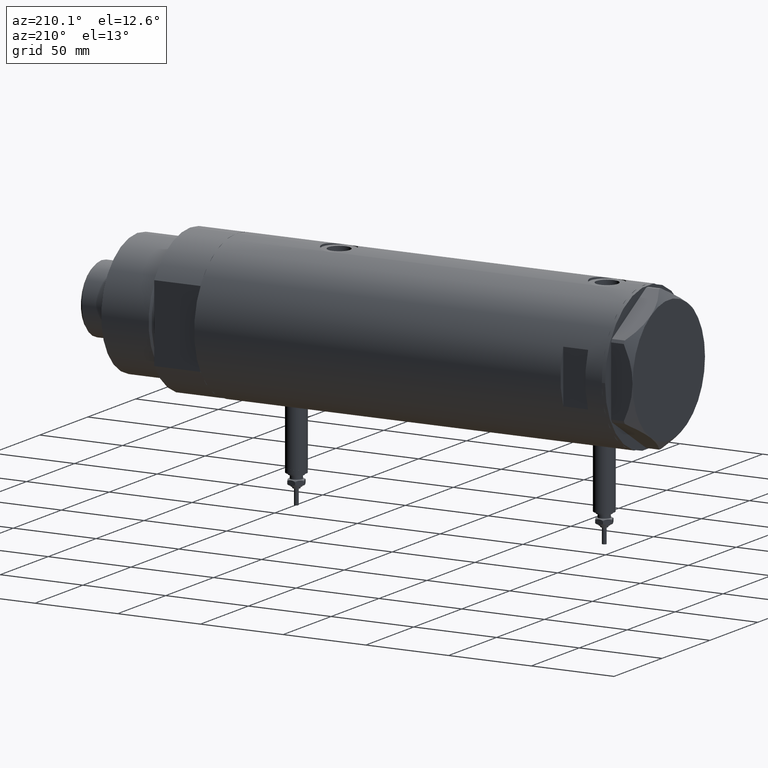
[diagram: clean part render]
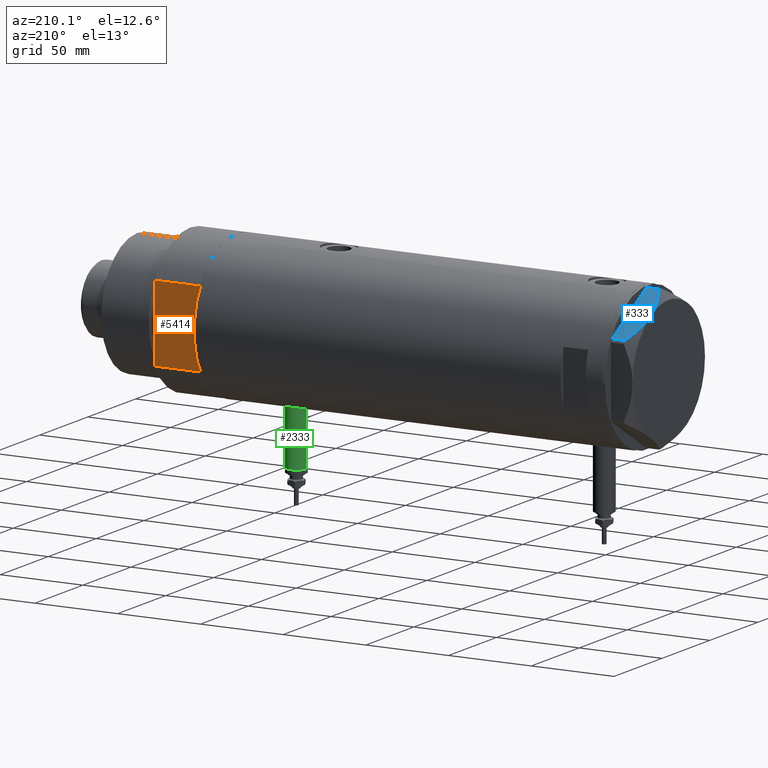
[diagram: same view with three faces highlighted in distinct colors, each labeled with its STEP entity id]
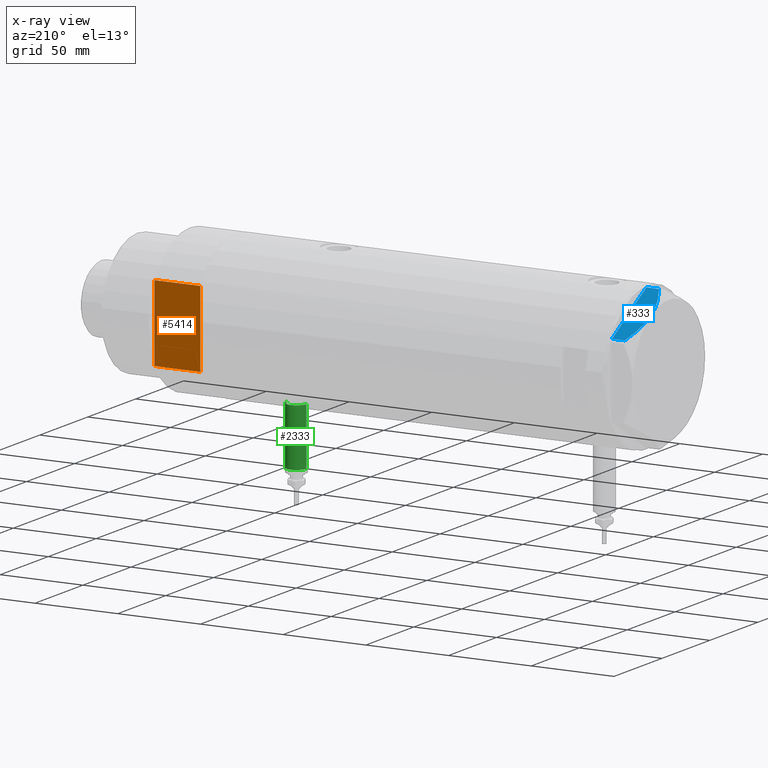
[diagram: x-ray of the same camera — body ghosted, the three highlighted faces saturated]
A machine part, auxiliary view with three faces highlighted in distinct colors.
The next image is the same camera in x-ray (body ghosted, the three faces saturated) — at least one of them is partly hidden behind the body in this view.
Their STEP definitions:

[orange] entity #5414 — the highlighted planar face has unit normal (0, -1, -0).
#45 = PLANE ( 'NONE',  #1479 ) ;
#73 = EDGE_LOOP ( 'NONE', ( #3172, #5002, #337, #314, #3048, #3741, #93 ) ) ;
#77 = VECTOR ( 'NONE', #3434, 1000.000000000000000 ) ;
#85 = CARTESIAN_POINT ( 'NONE',  ( -23.01629857296780557, 37.50000000000000000, 0.000000000000000000 ) ) ;
#93 = ORIENTED_EDGE ( 'NONE', *, *, #2149, .T. ) ;
#173 = DIRECTION ( 'NONE',  ( -0.000000000000000000, -0.000000000000000000, 1.000000000000000000 ) ) ;
#264 = VERTEX_POINT ( 'NONE', #5181 ) ;
#307 = DIRECTION ( 'NONE',  ( 1.000000000000000000, 0.000000000000000000, 0.000000000000000000 ) ) ;
#314 = ORIENTED_EDGE ( 'NONE', *, *, #3819, .F. ) ;
#337 = ORIENTED_EDGE ( 'NONE', *, *, #5377, .F. ) ;
#638 = LINE ( 'NONE', #2475, #2224 ) ;
#682 = EDGE_CURVE ( 'NONE', #2739, #264, #2949, .T. ) ;
#739 = EDGE_CURVE ( 'NONE', #1057, #1955, #4320, .T. ) ;
#847 = EDGE_CURVE ( 'NONE', #4390, #2739, #1793, .T. ) ;
#894 = CARTESIAN_POINT ( 'NONE',  ( 23.01629857296780557, 37.50000000000000000, 0.000000000000000000 ) ) ;
#922 = DIRECTION ( 'NONE',  ( 0.000000000000000000, -0.000000000000000000, -1.000000000000000000 ) ) ;
#1057 = VERTEX_POINT ( 'NONE', #1609 ) ;
#1282 = VECTOR ( 'NONE', #1320, 1000.000000000000000 ) ;
#1316 = CARTESIAN_POINT ( 'NONE',  ( -23.01629857296780557, 37.50000000000000000, 27.89999999999999858 ) ) ;
#1320 = DIRECTION ( 'NONE',  ( -0.000000000000000000, -0.000000000000000000, 1.000000000000000000 ) ) ;
#1408 = LINE ( 'NONE', #894, #1282 ) ;
#1479 = AXIS2_PLACEMENT_3D ( 'NONE', #3157, #4102, #922 ) ;
#1609 = CARTESIAN_POINT ( 'NONE',  ( -13.91941090707505957, 37.50000000000000000, 0.000000000000000000 ) ) ;
#1612 = LINE ( 'NONE', #1672, #5733 ) ;
#1672 = CARTESIAN_POINT ( 'NONE',  ( -23.01629857296780557, 37.50000000000000000, 0.000000000000000000 ) ) ;
#1793 = LINE ( 'NONE', #2774, #2796 ) ;
#1868 = FACE_OUTER_BOUND ( 'NONE', #73, .T. ) ;
#1895 = EDGE_CURVE ( 'NONE', #2068, #1057, #3454, .T. ) ;
#1955 = VERTEX_POINT ( 'NONE', #4953 ) ;
#2068 = VERTEX_POINT ( 'NONE', #85 ) ;
#2124 = CARTESIAN_POINT ( 'NONE',  ( 23.01629857296780557, 37.50000000000000000, 0.000000000000000000 ) ) ;
#2149 = EDGE_CURVE ( 'NONE', #2068, #4390, #638, .T. ) ;
#2224 = VECTOR ( 'NONE', #173, 1000.000000000000000 ) ;
#2475 = CARTESIAN_POINT ( 'NONE',  ( -23.01629857296780557, 37.50000000000000000, 0.000000000000000000 ) ) ;
#2739 = VERTEX_POINT ( 'NONE', #3874 ) ;
#2774 = CARTESIAN_POINT ( 'NONE',  ( -23.01629857296780557, 37.50000000000000000, 27.89999999999999858 ) ) ;
#2792 = VECTOR ( 'NONE', #307, 1000.000000000000000 ) ;
#2796 = VECTOR ( 'NONE', #3255, 1000.000000000000000 ) ;
#2949 = LINE ( 'NONE', #3945, #77 ) ;
#3048 = ORIENTED_EDGE ( 'NONE', *, *, #739, .F. ) ;
#3157 = CARTESIAN_POINT ( 'NONE',  ( -23.01629857296780557, 37.50000000000000000, 0.000000000000000000 ) ) ;
#3172 = ORIENTED_EDGE ( 'NONE', *, *, #847, .T. ) ;
#3255 = DIRECTION ( 'NONE',  ( 1.000000000000000000, 0.000000000000000000, 0.000000000000000000 ) ) ;
#3434 = DIRECTION ( 'NONE',  ( 1.000000000000000000, 0.000000000000000000, 0.000000000000000000 ) ) ;
#3454 = LINE ( 'NONE', #5404, #2792 ) ;
#3490 = CARTESIAN_POINT ( 'NONE',  ( -23.01629857296780557, 37.50000000000000000, 0.000000000000000000 ) ) ;
#3741 = ORIENTED_EDGE ( 'NONE', *, *, #1895, .F. ) ;
#3819 = EDGE_CURVE ( 'NONE', #1955, #5010, #1612, .T. ) ;
#3874 = CARTESIAN_POINT ( 'NONE',  ( 0.000000000000000000, 37.50000000000000000, 27.89999999999999858 ) ) ;
#3945 = CARTESIAN_POINT ( 'NONE',  ( -23.01629857296780557, 37.50000000000000000, 27.89999999999999858 ) ) ;
#4102 = DIRECTION ( 'NONE',  ( 0.000000000000000000, -1.000000000000000000, 0.000000000000000000 ) ) ;
#4320 = LINE ( 'NONE', #3490, #4831 ) ;
#4334 = DIRECTION ( 'NONE',  ( 1.000000000000000000, 0.000000000000000000, 0.000000000000000000 ) ) ;
#4390 = VERTEX_POINT ( 'NONE', #1316 ) ;
#4831 = VECTOR ( 'NONE', #5806, 1000.000000000000000 ) ;
#4953 = CARTESIAN_POINT ( 'NONE',  ( 13.91941090707505957, 37.50000000000000000, 0.000000000000000000 ) ) ;
#5002 = ORIENTED_EDGE ( 'NONE', *, *, #682, .T. ) ;
#5010 = VERTEX_POINT ( 'NONE', #2124 ) ;
#5181 = CARTESIAN_POINT ( 'NONE',  ( 23.01629857296780557, 37.50000000000000000, 27.89999999999999858 ) ) ;
#5377 = EDGE_CURVE ( 'NONE', #5010, #264, #1408, .T. ) ;
#5404 = CARTESIAN_POINT ( 'NONE',  ( -23.01629857296780557, 37.50000000000000000, 0.000000000000000000 ) ) ;
#5414 = ADVANCED_FACE ( 'NONE', ( #1868 ), #45, .F. ) ;
#5733 = VECTOR ( 'NONE', #4334, 1000.000000000000000 ) ;
#5806 = DIRECTION ( 'NONE',  ( 1.000000000000000000, 0.000000000000000000, 0.000000000000000000 ) ) ;

[blue] entity #333 — the highlighted planar face has unit normal (-0, -0.5, -0.866).
#50 = CARTESIAN_POINT ( 'NONE',  ( 33.94595399727396057, -23.99123964559198541, 9.210778219601310823 ) ) ;
#185 = AXIS2_PLACEMENT_3D ( 'NONE', #1081, #4811, #2021 ) ;
#220 = ORIENTED_EDGE ( 'NONE', *, *, #3410, .T. ) ;
#333 = ADVANCED_FACE ( 'NONE', ( #3865 ), #5754, .F. ) ;
#357 = B_SPLINE_CURVE_WITH_KNOTS ( 'NONE', 3,
 ( #1127, #2913, #5169, #2458, #3852, #4339, #3431, #1010, #5287, #761 ),
 .UNSPECIFIED., .F., .F.,
 ( 4, 2, 2, 2, 4 ),
 ( 0.001231023567492486306, 0.01191187151549576335, 0.01725229548949740177, 0.01992250747649822532, 0.02259271946349904886 ),
 .UNSPECIFIED. ) ;
#487 = EDGE_CURVE ( 'NONE', #2203, #5363, #5476, .T. ) ;
#647 = DIRECTION ( 'NONE',  ( 0.8660254037844388186, 0.4999999999999997224, 0.000000000000000000 ) ) ;
#761 = CARTESIAN_POINT ( 'NONE',  ( 18.87499999999998579, -32.69245899286256218, 13.00000000000000000 ) ) ;
#1010 = CARTESIAN_POINT ( 'NONE',  ( 17.30879953081281641, -33.59670525535269547, 12.96759879420491401 ) ) ;
#1081 = CARTESIAN_POINT ( 'NONE',  ( -4.107234936485837051E-15, -43.58994532381674247, 13.00000000000000000 ) ) ;
#1106 = LINE ( 'NONE', #2948, #4569 ) ;
#1127 = CARTESIAN_POINT ( 'NONE',  ( 0.9699484522384296259, -43.02994532381681836, 7.709124142616899711 ) ) ;
#1591 = CARTESIAN_POINT ( 'NONE',  ( 0.9699484522384296259, -43.02994532381681836, 7.709124142616899711 ) ) ;
#1600 = CARTESIAN_POINT ( 'NONE',  ( 18.87499999999998579, -32.69245899286256218, 13.00000000000000000 ) ) ;
#1711 = DIRECTION ( 'NONE',  ( 0.000000000000000000, 0.000000000000000000, -1.000000000000000000 ) ) ;
#1716 = EDGE_LOOP ( 'NONE', ( #4292, #220, #4941, #5168, #2813 ) ) ;
#1753 = CARTESIAN_POINT ( 'NONE',  ( 36.78005154775924268, -22.35497266190964538, 7.709124142618180464 ) ) ;
#1824 = EDGE_CURVE ( 'NONE', #3248, #5167, #357, .T. ) ;
#1876 = CARTESIAN_POINT ( 'NONE',  ( 21.96683860604023764, -30.90738514137435544, 12.87183830165162846 ) ) ;
#2021 = DIRECTION ( 'NONE',  ( -0.8660254037844388186, -0.4999999999999997224, 0.000000000000000000 ) ) ;
#2047 = VECTOR ( 'NONE', #1711, 1000.000000000000000 ) ;
#2203 = VERTEX_POINT ( 'NONE', #4490 ) ;
#2288 = CARTESIAN_POINT ( 'NONE',  ( 31.03235934281740427, -25.67340430365192105, 10.48240969891324070 ) ) ;
#2353 = CARTESIAN_POINT ( 'NONE',  ( 29.55075297405426227, -26.52881013949038547, 11.04644118613091841 ) ) ;
#2458 = CARTESIAN_POINT ( 'NONE',  ( 11.12401302890051191, -37.16749340711212568, 11.98878493998158312 ) ) ;
#2699 = DIRECTION ( 'NONE',  ( 0.000000000000000000, 0.000000000000000000, 1.000000000000000000 ) ) ;
#2757 = CARTESIAN_POINT ( 'NONE',  ( 0.9699484522385760643, -43.02994532381674020, 0.000000000000000000 ) ) ;
#2770 = CARTESIAN_POINT ( 'NONE',  ( 26.54034249379520460, -28.26687144063922830, 12.01242981158384993 ) ) ;
#2813 = ORIENTED_EDGE ( 'NONE', *, *, #3959, .F. ) ;
#2913 = CARTESIAN_POINT ( 'NONE',  ( 3.783045159267917956, -41.40580318275688398, 9.269459228581803600 ) ) ;
#2948 = CARTESIAN_POINT ( 'NONE',  ( -4.107234936485837051E-15, -43.58994532381674247, 0.000000000000000000 ) ) ;
#3248 = VERTEX_POINT ( 'NONE', #1591 ) ;
#3408 = CARTESIAN_POINT ( 'NONE',  ( 20.42709085942840730, -31.79635891736482023, 12.99999999999999645 ) ) ;
#3410 = EDGE_CURVE ( 'NONE', #3248, #5739, #4612, .T. ) ;
#3431 = CARTESIAN_POINT ( 'NONE',  ( 15.73313492417777937, -34.50641564014599538, 12.83692902789789514 ) ) ;
#3636 = CARTESIAN_POINT ( 'NONE',  ( 0.9699484522385762864, -43.02994532381674020, 13.00000000000000000 ) ) ;
#3852 = CARTESIAN_POINT ( 'NONE',  ( 12.63736081963744873, -36.29376165275263588, 12.35956205105863326 ) ) ;
#3865 = FACE_OUTER_BOUND ( 'NONE', #1716, .T. ) ;
#3959 = EDGE_CURVE ( 'NONE', #5167, #5363, #4890, .T. ) ;
#4161 = VECTOR ( 'NONE', #2699, 1000.000000000000000 ) ;
#4200 = CARTESIAN_POINT ( 'NONE',  ( 31.76569840794746824, -25.25001079699180551, 10.17879673963500942 ) ) ;
#4292 = ORIENTED_EDGE ( 'NONE', *, *, #1824, .F. ) ;
#4327 = CARTESIAN_POINT ( 'NONE',  ( 18.87499999999998579, -32.69245899286256218, 13.00000000000000000 ) ) ;
#4339 = CARTESIAN_POINT ( 'NONE',  ( 14.95332775978646822, -34.95663751642331363, 12.73960743196719747 ) ) ;
#4486 = EDGE_CURVE ( 'NONE', #5739, #2203, #1106, .T. ) ;
#4490 = CARTESIAN_POINT ( 'NONE',  ( 36.78005154776143115, -22.35497266190837706, 0.000000000000000000 ) ) ;
#4569 = VECTOR ( 'NONE', #647, 1000.000000000000114 ) ;
#4612 = LINE ( 'NONE', #3636, #2047 ) ;
#4629 = CARTESIAN_POINT ( 'NONE',  ( 28.80058011347544422, -26.96192264248431769, 11.30742055474504859 ) ) ;
#4666 = CARTESIAN_POINT ( 'NONE',  ( 36.78005154775924268, -22.35497266190964538, 7.709124142618180464 ) ) ;
#4699 = CARTESIAN_POINT ( 'NONE',  ( 25.02345495740816972, -29.14264686810265914, 12.37795492145971821 ) ) ;
#4811 = DIRECTION ( 'NONE',  ( -0.4999999999999997224, 0.8660254037844388186, 0.000000000000000000 ) ) ;
#4890 = B_SPLINE_CURVE_WITH_KNOTS ( 'NONE', 3,
 ( #1600, #3408, #1876, #4699, #2770, #4629, #2353, #2288, #4200, #50, #5058, #4666 ),
 .UNSPECIFIED., .F., .F.,
 ( 4, 2, 2, 2, 2, 4 ),
 ( 0.02259271946349904886, 0.02789559809390703207, 0.03319847672431501528, 0.03584991603951900863, 0.03850135535472300197, 0.04380423398513099559 ),
 .UNSPECIFIED. ) ;
#4941 = ORIENTED_EDGE ( 'NONE', *, *, #4486, .T. ) ;
#5058 = CARTESIAN_POINT ( 'NONE',  ( 35.37320095427428157, -23.16721823076776232, 8.489459328479206590 ) ) ;
#5167 = VERTEX_POINT ( 'NONE', #4327 ) ;
#5168 = ORIENTED_EDGE ( 'NONE', *, *, #487, .T. ) ;
#5169 = CARTESIAN_POINT ( 'NONE',  ( 6.659529780759589457, -39.74506401221886165, 10.58681170757598977 ) ) ;
#5287 = CARTESIAN_POINT ( 'NONE',  ( 18.09346002772999995, -33.14368130623511632, 12.99999999999999822 ) ) ;
#5363 = VERTEX_POINT ( 'NONE', #1753 ) ;
#5476 = LINE ( 'NONE', #5899, #4161 ) ;
#5739 = VERTEX_POINT ( 'NONE', #2757 ) ;
#5754 = PLANE ( 'NONE',  #185 ) ;
#5899 = CARTESIAN_POINT ( 'NONE',  ( 36.78005154776145247, -22.35497266190836640, 13.00000000000000000 ) ) ;

[green] entity #2333 — the highlighted cylindrical surface (edge-blend (fillet) strip) has radius 6 mm, axis along (0, 0, 1).
#494 = DIRECTION ( 'NONE',  ( 1.000000000000000000, -0.000000000000000000, -0.000000000000000000 ) ) ;
#678 = CIRCLE ( 'NONE', #4057, 6.000000000000005329 ) ;
#903 = DIRECTION ( 'NONE',  ( -1.000000000000000000, 0.000000000000000000, 0.000000000000000000 ) ) ;
#928 = CARTESIAN_POINT ( 'NONE',  ( -77.50000000000000000, 0.000000000000000000, -86.90000000000000568 ) ) ;
#1034 = CARTESIAN_POINT ( 'NONE',  ( -77.50000000000000000, 7.347880794884122694E-16, -80.90000000000000568 ) ) ;
#1254 = CARTESIAN_POINT ( 'NONE',  ( -42.79999999999999716, 7.347880794884119736E-16, -80.90000000000000568 ) ) ;
#1389 = DIRECTION ( 'NONE',  ( 0.000000000000000000, 0.000000000000000000, -1.000000000000000000 ) ) ;
#2006 = EDGE_CURVE ( 'NONE', #4208, #4446, #3176, .T. ) ;
#2015 = CARTESIAN_POINT ( 'NONE',  ( -42.79999999999999716, 0.000000000000000000, -92.90000000000000568 ) ) ;
#2305 = CARTESIAN_POINT ( 'NONE',  ( -77.50000000000000000, 0.000000000000000000, -92.90000000000000568 ) ) ;
#2333 = ADVANCED_FACE ( 'NONE', ( #5429 ), #5946, .T. ) ;
#2448 = EDGE_CURVE ( 'NONE', #5108, #3598, #678, .T. ) ;
#2596 = ORIENTED_EDGE ( 'NONE', *, *, #4412, .F. ) ;
#2602 = AXIS2_PLACEMENT_3D ( 'NONE', #4021, #3688, #1389 ) ;
#2658 = CARTESIAN_POINT ( 'NONE',  ( -77.50000000000000000, 7.347880794884119736E-16, -80.90000000000000568 ) ) ;
#2717 = DIRECTION ( 'NONE',  ( -1.000000000000000000, 0.000000000000000000, 0.000000000000000000 ) ) ;
#2776 = DIRECTION ( 'NONE',  ( 0.000000000000000000, 0.000000000000000000, 1.000000000000000000 ) ) ;
#2842 = CARTESIAN_POINT ( 'NONE',  ( -77.50000000000000000, 0.000000000000000000, -92.90000000000000568 ) ) ;
#3119 = ORIENTED_EDGE ( 'NONE', *, *, #2448, .F. ) ;
#3176 = CIRCLE ( 'NONE', #5131, 6.000000000000005329 ) ;
#3452 = DIRECTION ( 'NONE',  ( 1.000000000000000000, -0.000000000000000000, -0.000000000000000000 ) ) ;
#3598 = VERTEX_POINT ( 'NONE', #2842 ) ;
#3688 = DIRECTION ( 'NONE',  ( 1.000000000000000000, -0.000000000000000000, -0.000000000000000000 ) ) ;
#4021 = CARTESIAN_POINT ( 'NONE',  ( -77.50000000000000000, 0.000000000000000000, -86.90000000000000568 ) ) ;
#4057 = AXIS2_PLACEMENT_3D ( 'NONE', #928, #903, #5973 ) ;
#4208 = VERTEX_POINT ( 'NONE', #1254 ) ;
#4412 = EDGE_CURVE ( 'NONE', #3598, #4446, #5014, .T. ) ;
#4446 = VERTEX_POINT ( 'NONE', #2015 ) ;
#4523 = CARTESIAN_POINT ( 'NONE',  ( -42.79999999999999716, 0.000000000000000000, -86.90000000000000568 ) ) ;
#4626 = ORIENTED_EDGE ( 'NONE', *, *, #2006, .T. ) ;
#4870 = EDGE_CURVE ( 'NONE', #5108, #4208, #5194, .T. ) ;
#5014 = LINE ( 'NONE', #2305, #5053 ) ;
#5053 = VECTOR ( 'NONE', #494, 1000.000000000000000 ) ;
#5108 = VERTEX_POINT ( 'NONE', #2658 ) ;
#5131 = AXIS2_PLACEMENT_3D ( 'NONE', #4523, #2717, #2776 ) ;
#5194 = LINE ( 'NONE', #1034, #5550 ) ;
#5293 = EDGE_LOOP ( 'NONE', ( #3119, #5396, #4626, #2596 ) ) ;
#5396 = ORIENTED_EDGE ( 'NONE', *, *, #4870, .T. ) ;
#5429 = FACE_OUTER_BOUND ( 'NONE', #5293, .T. ) ;
#5550 = VECTOR ( 'NONE', #3452, 1000.000000000000000 ) ;
#5946 = CYLINDRICAL_SURFACE ( 'NONE', #2602, 6.000000000000005329 ) ;
#5973 = DIRECTION ( 'NONE',  ( 0.000000000000000000, 0.000000000000000000, 1.000000000000000000 ) ) ;